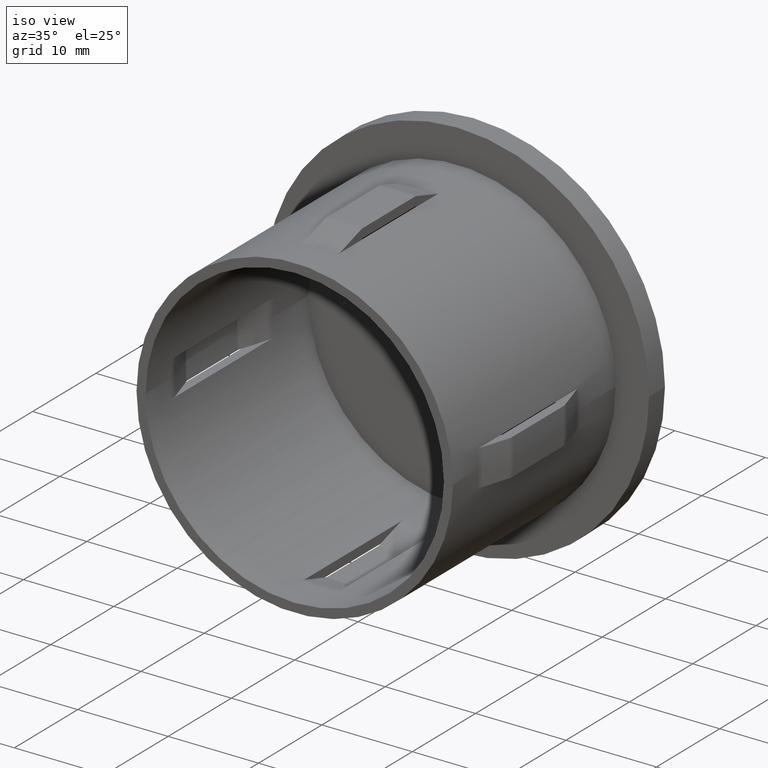
[diagram: clean part render]
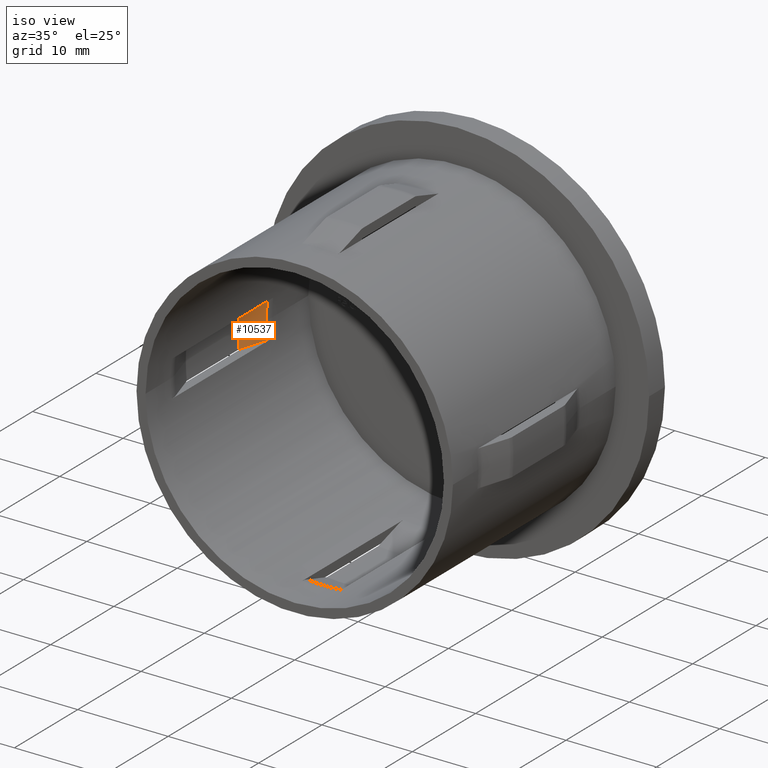
[diagram: same view with one face highlighted and labeled with its STEP entity id]
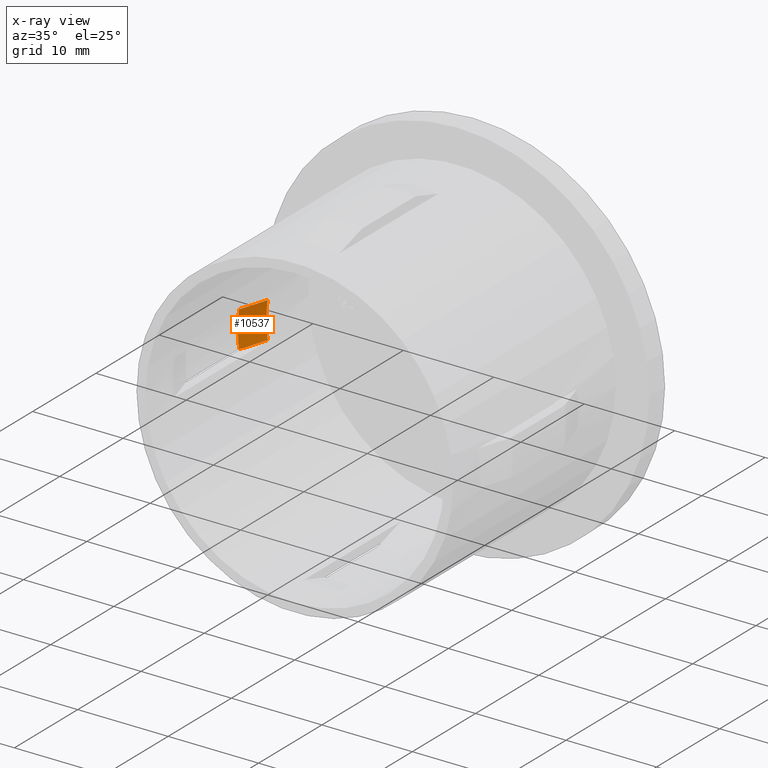
[diagram: x-ray of the same camera — body ghosted, the highlighted face saturated]
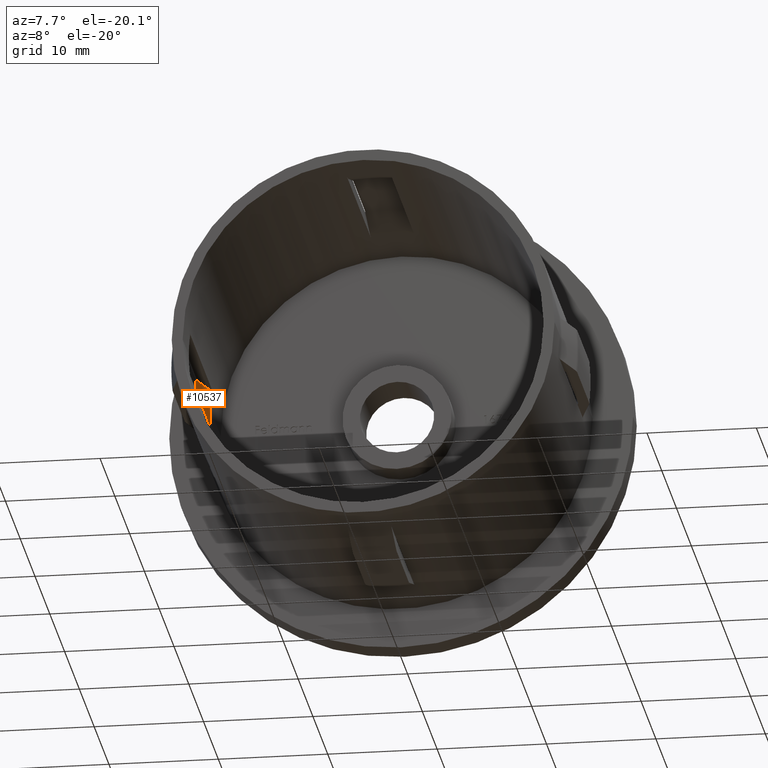
[diagram: same view with one face highlighted and labeled with its STEP entity id]
A machine part, iso view. The second image highlights one B-rep face of the part: STEP entity #10537.
The next image is the same camera in x-ray: the body ghosted, the highlighted face saturated — about 0% of this face is hidden behind the body in this view.
A second angle (auxiliary view) of the same face is appended — the face is thin or edge-on in the first view.
In plain terms, the highlighted conical surface has half-angle 17.238 deg.
Its self-contained STEP definition (entity closure, byte-faithful):
#303 = AXIS2_PLACEMENT_3D ( 'NONE', #14606, #5875, #15856 ) ;
#425 = VERTEX_POINT ( 'NONE', #15176 ) ;
#1229 = CARTESIAN_POINT ( 'NONE',  ( 1.821363966432333700E-015, 16.14816754103868100, 0.0000000000000000000 ) ) ;
#1425 = ORIENTED_EDGE ( 'NONE', *, *, #3165, .F. ) ;
#1496 = VERTEX_POINT ( 'NONE', #16045 ) ;
#1680 = FACE_OUTER_BOUND ( 'NONE', #6186, .T. ) ;
#1803 = CARTESIAN_POINT ( 'NONE',  ( -16.49145766480443200, 19.25916229480657900, -2.000000000000000000 ) ) ;
#1853 = CARTESIAN_POINT ( 'NONE',  ( -17.03125340735652700, 17.53175547508743300, -2.000000000000000000 ) ) ;
#2939 = CARTESIAN_POINT ( 'NONE',  ( -16.61228990567034500, 19.25916229480657900, 0.0000000000000000000 ) ) ;
#2974 = CARTESIAN_POINT ( 'NONE',  ( -16.49145766480443200, 19.25916229480657900, 2.000000000000000000 ) ) ;
#3165 = EDGE_CURVE ( 'NONE', #7550, #425, #4043, .T. ) ;
#3170 = DIRECTION ( 'NONE',  ( -1.000000000000000000, -1.973795282770404200E-016, 0.0000000000000000000 ) ) ;
#3519 = DIRECTION ( 'NONE',  ( -1.714505518806297100E-016, 1.000000000000000000, -0.0000000000000000000 ) ) ;
#3621 = VERTEX_POINT ( 'NONE', #2974 ) ;
#3693 = AXIS2_PLACEMENT_3D ( 'NONE', #10670, #14408, #3170 ) ;
#3717 = ORIENTED_EDGE ( 'NONE', *, *, #7456, .F. ) ;
#3766 = CARTESIAN_POINT ( 'NONE',  ( -16.76139919848270300, 18.39547253319597800, 2.000000000000000000 ) ) ;
#3819 = CONICAL_SURFACE ( 'NONE', #13929, 16.61228990567034500, 0.3008530848105417400 ) ;
#4043 = CIRCLE ( 'NONE', #3693, 17.57754201886593000 ) ;
#4278 = CARTESIAN_POINT ( 'NONE',  ( -17.38533865071371000, 16.39808443900832600, 2.000000000000000000 ) ) ;
#4343 = CARTESIAN_POINT ( 'NONE',  ( -17.43737344134618200, 16.23147338882611000, -2.000000000000000000 ) ) ;
#4654 = AXIS2_PLACEMENT_3D ( 'NONE', #1229, #3519, #9770 ) ;
#5022 = CARTESIAN_POINT ( 'NONE',  ( -17.32913502361515200, 16.57803826764044400, 2.000000000000000000 ) ) ;
#5146 = CARTESIAN_POINT ( 'NONE',  ( -17.38533865071371000, 16.39808443900832200, -2.000000000000000000 ) ) ;
#5411 = DIRECTION ( 'NONE',  ( 1.714505518806297100E-016, -1.000000000000000000, 0.0000000000000000000 ) ) ;
#5676 = CARTESIAN_POINT ( 'NONE',  ( -16.76139919848270300, 18.39547253319597800, -2.000000000000000000 ) ) ;
#5875 = DIRECTION ( 'NONE',  ( -1.714505518806297100E-016, 1.000000000000000000, -0.0000000000000000000 ) ) ;
#6186 = EDGE_LOOP ( 'NONE', ( #10206, #9934, #14815, #13922, #11828, #1425, #3717, #14892 ) ) ;
#6276 = CARTESIAN_POINT ( 'NONE',  ( -17.38533865071371000, 16.39808443900832600, 2.000000000000000000 ) ) ;
#6287 = B_SPLINE_CURVE_WITH_KNOTS ( 'NONE', 3,
 ( #7676, #11593, #4343, #10600 ),
 .UNSPECIFIED., .F., .F.,
 ( 4, 4 ),
 ( 0.005733411264842915700, 0.005995232646540166500 ),
 .UNSPECIFIED. ) ;
#6441 = CARTESIAN_POINT ( 'NONE',  ( -16.49145766480443200, 19.25916229480657900, 2.000000000000000000 ) ) ;
#6504 = DIRECTION ( 'NONE',  ( -1.714505518806297100E-016, 1.000000000000000000, -0.0000000000000000000 ) ) ;
#6784 = CARTESIAN_POINT ( 'NONE',  ( -17.41135639354270400, 16.31477902245309500, 2.000000000000000000 ) ) ;
#6968 = EDGE_CURVE ( 'NONE', #7308, #3621, #12596, .T. ) ;
#7137 = CARTESIAN_POINT ( 'NONE',  ( -17.46338980338575600, 16.14816754103868500, -2.000000000000000000 ) ) ;
#7308 = VERTEX_POINT ( 'NONE', #2939 ) ;
#7456 = EDGE_CURVE ( 'NONE', #9542, #7550, #10557, .T. ) ;
#7550 = VERTEX_POINT ( 'NONE', #13768 ) ;
#7676 = CARTESIAN_POINT ( 'NONE',  ( -17.38533865071371000, 16.39808443900832200, -2.000000000000000000 ) ) ;
#7700 = CARTESIAN_POINT ( 'NONE',  ( -17.35723724256768800, 16.48806147993687400, 2.000000000000000000 ) ) ;
#8093 = CARTESIAN_POINT ( 'NONE',  ( -17.32913502361515200, 16.57803826764044100, -2.000000000000000000 ) ) ;
#8146 = CARTESIAN_POINT ( 'NONE',  ( -17.35723724256768800, 16.48806147993686700, -2.000000000000000000 ) ) ;
#8759 = VERTEX_POINT ( 'NONE', #5146 ) ;
#8781 = EDGE_CURVE ( 'NONE', #1496, #425, #11995, .T. ) ;
#8987 = VERTEX_POINT ( 'NONE', #16040 ) ;
#9265 = CARTESIAN_POINT ( 'NONE',  ( -17.43737344134618200, 16.23147338882610700, 2.000000000000000000 ) ) ;
#9542 = VERTEX_POINT ( 'NONE', #7137 ) ;
#9770 = DIRECTION ( 'NONE',  ( -1.000000000000000000, -1.973795282770404200E-016, 0.0000000000000000000 ) ) ;
#9934 = ORIENTED_EDGE ( 'NONE', *, *, #11154, .T. ) ;
#10206 = ORIENTED_EDGE ( 'NONE', *, *, #10573, .F. ) ;
#10521 = CARTESIAN_POINT ( 'NONE',  ( -17.30103198196604100, 16.66801479838104400, -2.000000000000000000 ) ) ;
#10537 = ADVANCED_FACE ( 'NONE', ( #1680 ), #3819, .F. ) ;
#10557 = CIRCLE ( 'NONE', #4654, 17.57754201886593000 ) ;
#10573 = EDGE_CURVE ( 'NONE', #8987, #8759, #14213, .T. ) ;
#10600 = CARTESIAN_POINT ( 'NONE',  ( -17.46338980338575600, 16.14816754103868500, -2.000000000000000000 ) ) ;
#10629 = CARTESIAN_POINT ( 'NONE',  ( -17.38533865071371000, 16.39808443900832200, -2.000000000000000000 ) ) ;
#10670 = CARTESIAN_POINT ( 'NONE',  ( 1.821363966432333700E-015, 16.14816754103868100, 0.0000000000000000000 ) ) ;
#10870 = CIRCLE ( 'NONE', #303, 16.61228990567034500 ) ;
#11154 = EDGE_CURVE ( 'NONE', #8987, #7308, #10870, .T. ) ;
#11336 = CARTESIAN_POINT ( 'NONE',  ( -17.03125340735652700, 17.53175547508743300, 2.000000000000000000 ) ) ;
#11593 = CARTESIAN_POINT ( 'NONE',  ( -17.41135639354270400, 16.31477902245309500, -2.000000000000000000 ) ) ;
#11676 = CARTESIAN_POINT ( 'NONE',  ( 1.287982199001083500E-015, 19.25916229480658300, 0.0000000000000000000 ) ) ;
#11828 = ORIENTED_EDGE ( 'NONE', *, *, #8781, .T. ) ;
#11995 = B_SPLINE_CURVE_WITH_KNOTS ( 'NONE', 3,
 ( #4278, #6784, #9265, #15551 ),
 .UNSPECIFIED., .F., .F.,
 ( 4, 4 ),
 ( 0.005733411264842911400, 0.005995232646540170900 ),
 .UNSPECIFIED. ) ;
#12581 = CARTESIAN_POINT ( 'NONE',  ( -17.30103198196604100, 16.66801479838104400, 2.000000000000000000 ) ) ;
#12596 = CIRCLE ( 'NONE', #14837, 16.61228990567034500 ) ;
#13768 = CARTESIAN_POINT ( 'NONE',  ( -17.57754201886592700, 16.14816754103867800, 0.0000000000000000000 ) ) ;
#13844 = B_SPLINE_CURVE_WITH_KNOTS ( 'NONE', 3,
 ( #6441, #3766, #11336, #12581, #5022, #7700, #6276 ),
 .UNSPECIFIED., .F., .F.,
 ( 4, 3, 4 ),
 ( 0.003648053927479174300, 0.006362728084892709000, 0.006645517775830694100 ),
 .UNSPECIFIED. ) ;
#13922 = ORIENTED_EDGE ( 'NONE', *, *, #14854, .T. ) ;
#13929 = AXIS2_PLACEMENT_3D ( 'NONE', #11676, #5411, #14365 ) ;
#14213 = B_SPLINE_CURVE_WITH_KNOTS ( 'NONE', 3,
 ( #1803, #5676, #1853, #10521, #8093, #8146, #10629 ),
 .UNSPECIFIED., .F., .F.,
 ( 4, 3, 4 ),
 ( 0.003648053927479174300, 0.006362728084892709000, 0.006645517775830698400 ),
 .UNSPECIFIED. ) ;
#14365 = DIRECTION ( 'NONE',  ( 1.000000000000000000, 2.088482064576403000E-016, 0.0000000000000000000 ) ) ;
#14408 = DIRECTION ( 'NONE',  ( -1.714505518806297100E-016, 1.000000000000000000, -0.0000000000000000000 ) ) ;
#14606 = CARTESIAN_POINT ( 'NONE',  ( 1.287982199001083500E-015, 19.25916229480658300, 0.0000000000000000000 ) ) ;
#14815 = ORIENTED_EDGE ( 'NONE', *, *, #6968, .T. ) ;
#14837 = AXIS2_PLACEMENT_3D ( 'NONE', #15230, #6504, #15290 ) ;
#14854 = EDGE_CURVE ( 'NONE', #3621, #1496, #13844, .T. ) ;
#14892 = ORIENTED_EDGE ( 'NONE', *, *, #15269, .F. ) ;
#15176 = CARTESIAN_POINT ( 'NONE',  ( -17.46338980338574500, 16.14816754103867800, 2.000000000000000000 ) ) ;
#15230 = CARTESIAN_POINT ( 'NONE',  ( 1.287982199001083500E-015, 19.25916229480658300, 0.0000000000000000000 ) ) ;
#15269 = EDGE_CURVE ( 'NONE', #8759, #9542, #6287, .T. ) ;
#15290 = DIRECTION ( 'NONE',  ( -1.000000000000000000, -2.088482064576403000E-016, 0.0000000000000000000 ) ) ;
#15551 = CARTESIAN_POINT ( 'NONE',  ( -17.46338980338574500, 16.14816754103867800, 2.000000000000000000 ) ) ;
#15856 = DIRECTION ( 'NONE',  ( -1.000000000000000000, -2.088482064576403000E-016, 0.0000000000000000000 ) ) ;
#16040 = CARTESIAN_POINT ( 'NONE',  ( -16.49145766480443200, 19.25916229480657900, -2.000000000000000000 ) ) ;
#16045 = CARTESIAN_POINT ( 'NONE',  ( -17.38533865071371000, 16.39808443900832600, 2.000000000000000000 ) ) ;